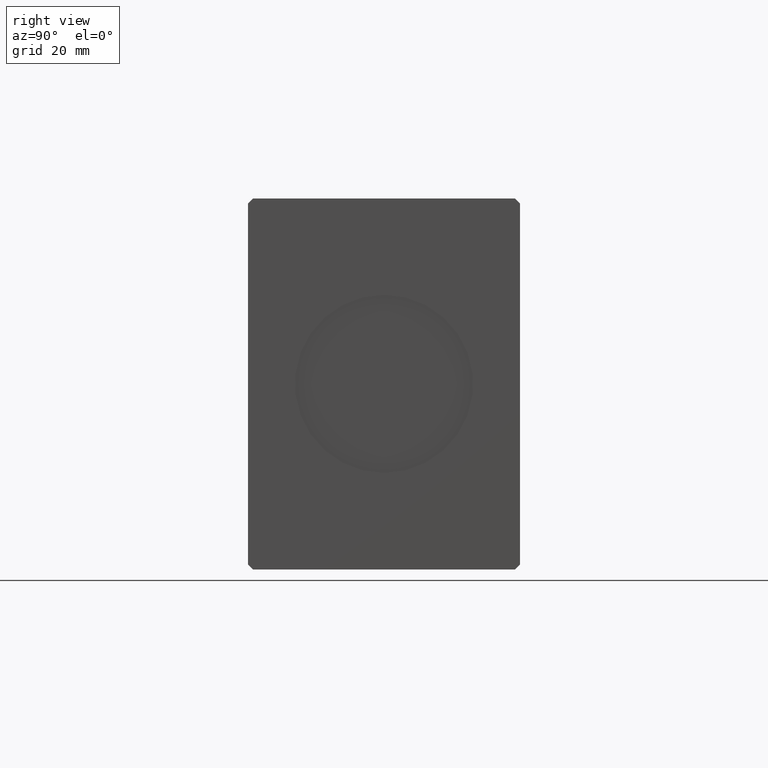
[diagram: clean part render]
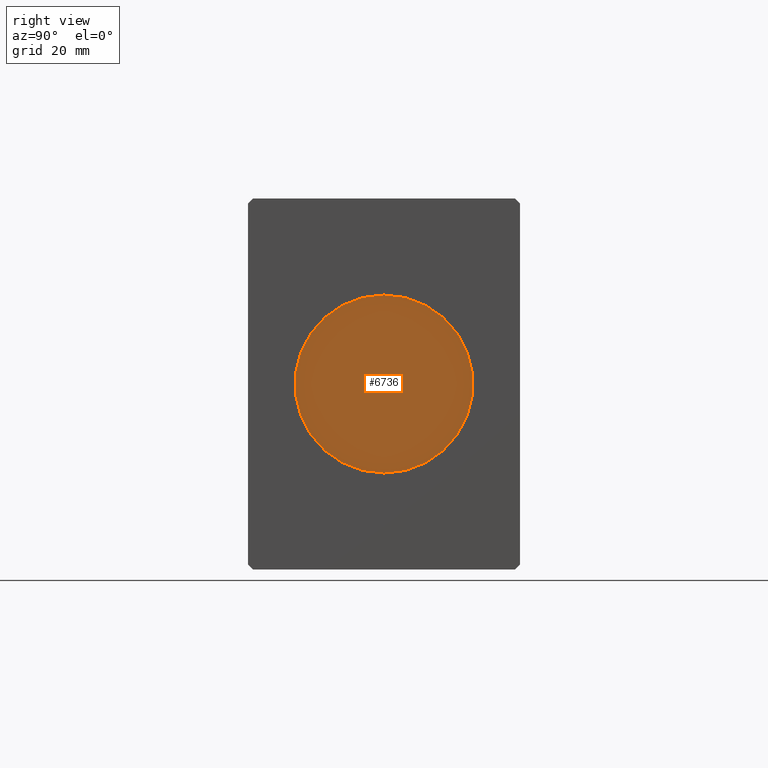
[diagram: same view with one face highlighted and labeled with its STEP entity id]
A machine part, right view. The second image highlights one B-rep face of the part: STEP entity #6736.
In plain terms, the highlighted planar face has unit normal (1, 0, 0).
Its self-contained STEP definition (entity closure, byte-faithful):
#1238 = CIRCLE ( 'NONE', #23539, 18.00000000000000000 ) ;
#1507 = CIRCLE ( 'NONE', #11707, 18.00000000000000000 ) ;
#2322 = EDGE_CURVE ( 'NONE', #36865, #3872, #1507, .T. ) ;
#3872 = VERTEX_POINT ( 'NONE', #36319 ) ;
#6736 = ADVANCED_FACE ( 'NONE', ( #34774 ), #26220, .T. ) ;
#7493 = CARTESIAN_POINT ( 'NONE',  ( 114.7999999999999972, 0.000000000000000000, 0.000000000000000000 ) ) ;
#11707 = AXIS2_PLACEMENT_3D ( 'NONE', #35612, #20492, #23684 ) ;
#15954 = ORIENTED_EDGE ( 'NONE', *, *, #33874, .T. ) ;
#19662 = DIRECTION ( 'NONE',  ( 1.000000000000000000, 0.000000000000000000, 0.000000000000000000 ) ) ;
#20492 = DIRECTION ( 'NONE',  ( 1.000000000000000000, 0.000000000000000000, 0.000000000000000000 ) ) ;
#22883 = DIRECTION ( 'NONE',  ( 1.000000000000000000, 0.000000000000000000, 0.000000000000000000 ) ) ;
#23539 = AXIS2_PLACEMENT_3D ( 'NONE', #31828, #22883, #26442 ) ;
#23684 = DIRECTION ( 'NONE',  ( 0.000000000000000000, 0.000000000000000000, -1.000000000000000000 ) ) ;
#26220 = PLANE ( 'NONE',  #35237 ) ;
#26442 = DIRECTION ( 'NONE',  ( 0.000000000000000000, 0.000000000000000000, -1.000000000000000000 ) ) ;
#28627 = DIRECTION ( 'NONE',  ( 0.000000000000000000, 0.000000000000000000, -1.000000000000000000 ) ) ;
#31828 = CARTESIAN_POINT ( 'NONE',  ( 114.7999999999999972, 0.000000000000000000, 0.000000000000000000 ) ) ;
#32723 = CARTESIAN_POINT ( 'NONE',  ( 114.7999999999999972, 0.000000000000000000, -18.00000000000000000 ) ) ;
#32757 = ORIENTED_EDGE ( 'NONE', *, *, #2322, .T. ) ;
#33874 = EDGE_CURVE ( 'NONE', #3872, #36865, #1238, .T. ) ;
#34774 = FACE_OUTER_BOUND ( 'NONE', #38748, .T. ) ;
#35237 = AXIS2_PLACEMENT_3D ( 'NONE', #7493, #19662, #28627 ) ;
#35612 = CARTESIAN_POINT ( 'NONE',  ( 114.7999999999999972, 0.000000000000000000, 0.000000000000000000 ) ) ;
#36319 = CARTESIAN_POINT ( 'NONE',  ( 114.7999999999999972, 2.204364238465235428E-15, 18.00000000000000000 ) ) ;
#36865 = VERTEX_POINT ( 'NONE', #32723 ) ;
#38748 = EDGE_LOOP ( 'NONE', ( #32757, #15954 ) ) ;